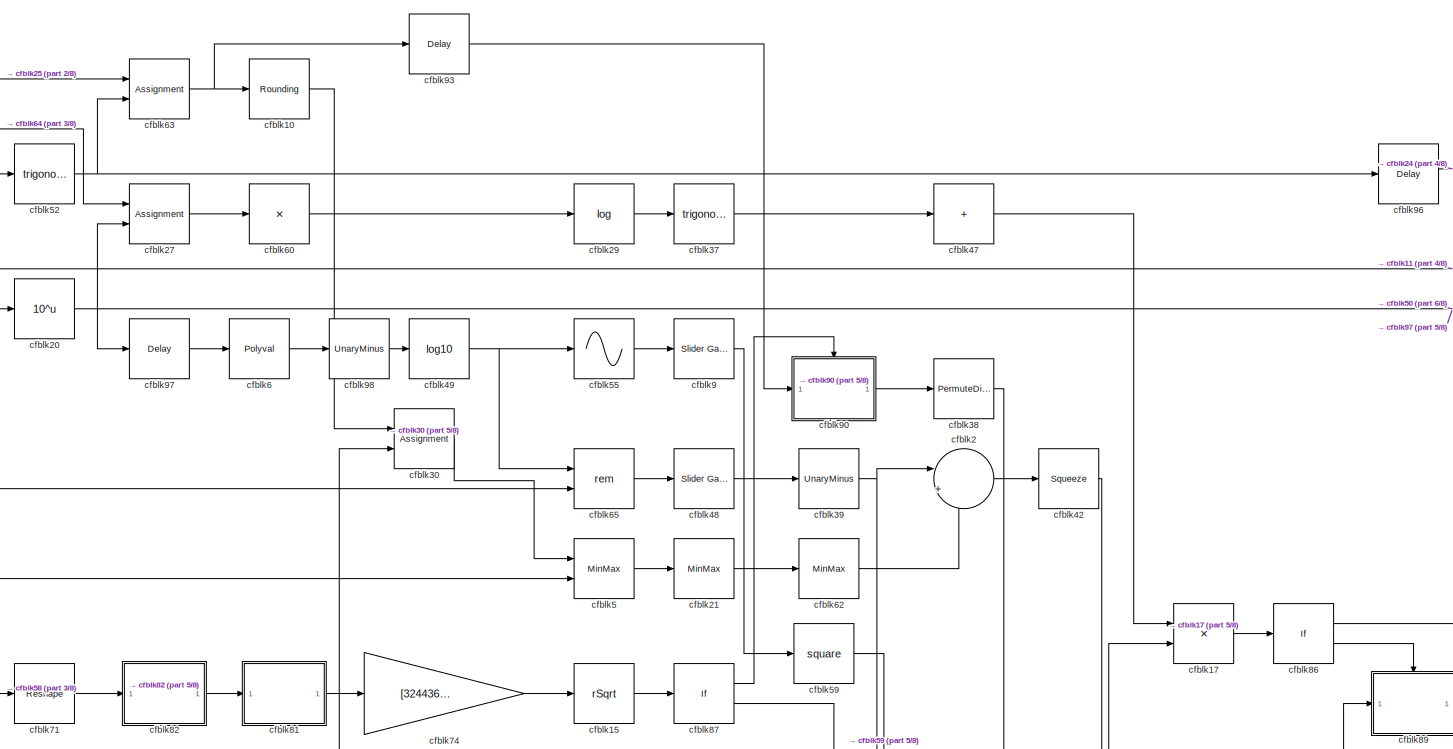
[diagram: root canvas - part 1/8, top center region]
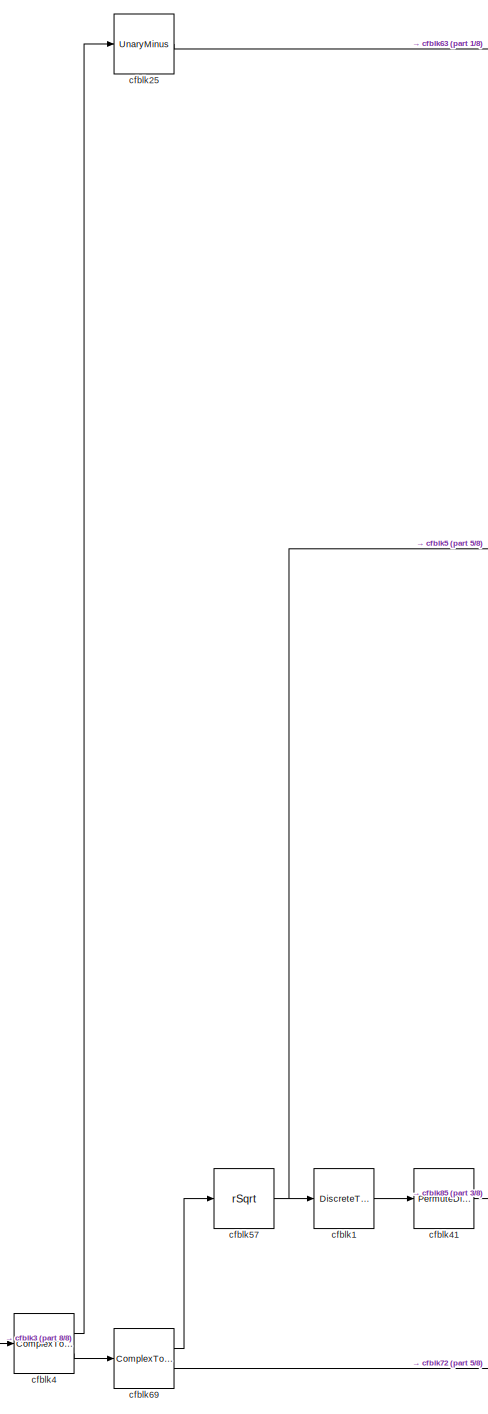
[diagram: root canvas - part 2/8, left side, full height]
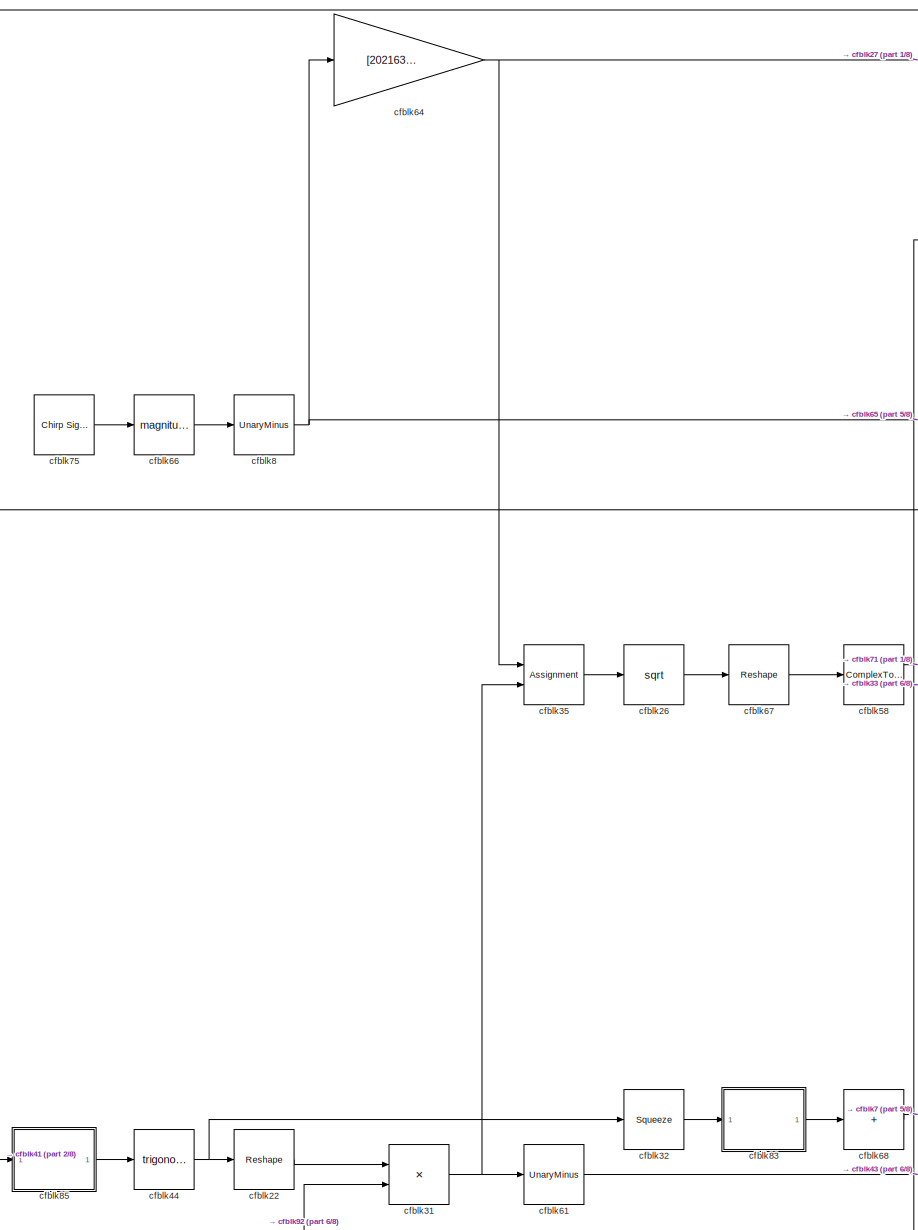
[diagram: root canvas - part 3/8, left side, full height]
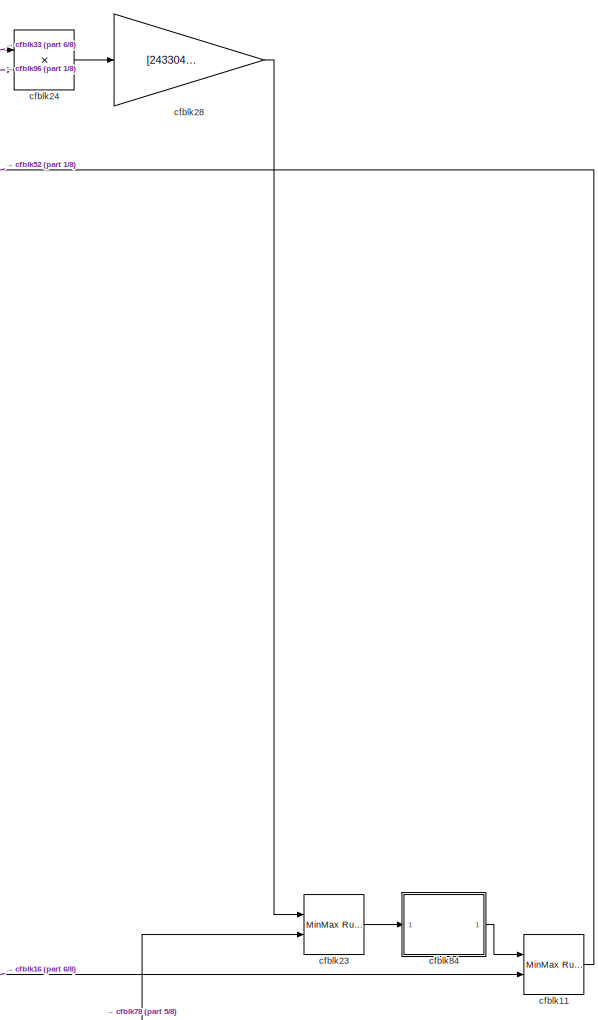
[diagram: root canvas - part 4/8, middle right region]
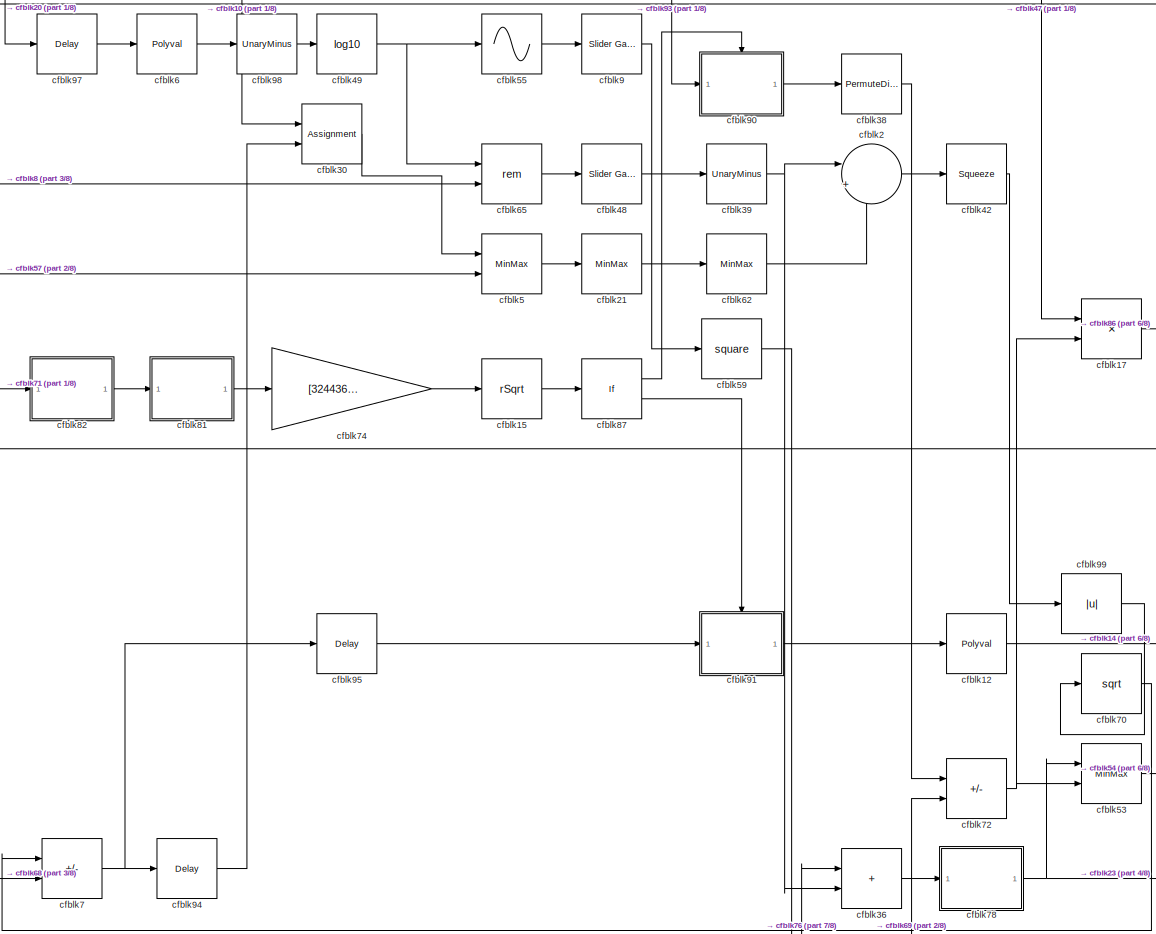
[diagram: root canvas - part 5/8, central region]
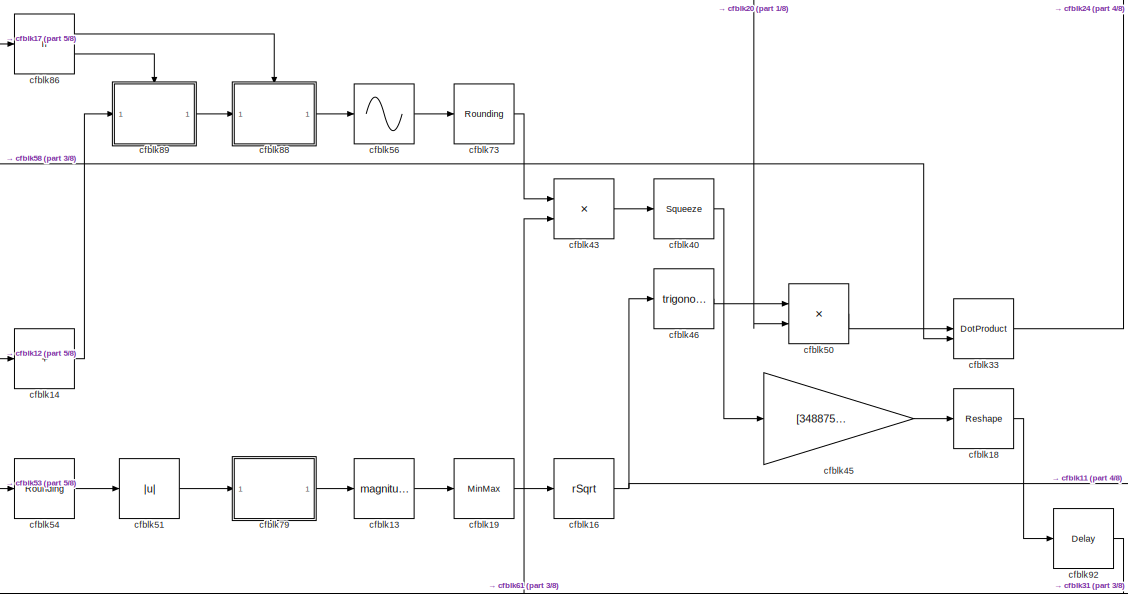
[diagram: root canvas - part 6/8, middle right region]
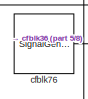
[diagram: root canvas - part 7/8, bottom center region]
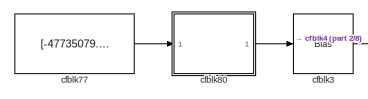
[diagram: root canvas - part 8/8, bottom left region]
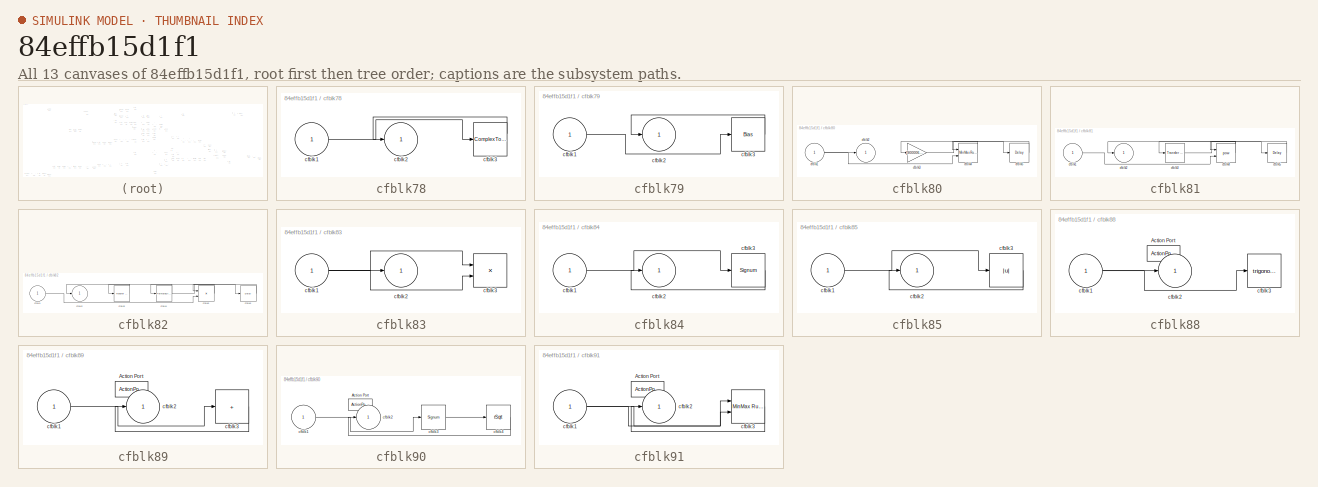
[diagram: thumbnail index - all 13 canvases of the model, root first then tree order]
MODEL slx_84effb15d1f1
KIND model
CONFIG AbsTol = auto
CONFIG EnableMultiTasking = off
CONFIG FixedStep = auto
CONFIG MaxStep = auto
CONFIG MinStep = auto
CONFIG RelTol = 1e-3
CONFIG SampleTimeConstraint = Unconstrained
CONFIG SolverName = VariableStepAuto
CONFIG StartTime = 0.0
CONFIG StopTime = 10.0
BLOCK [DiscreteTransferFcn] cfblk1
  InputPortMap = u0
  Ports = [1, 1]
  SampleTime = 1
BLOCK [Rounding] cfblk10
BLOCK [Reference] cfblk11  REF=simulink/Math
Operations/MinMax
Running
Resettable
  Ports = [2, 1]
  SourceBlock = simulink/Math\nOperations/MinMax\nRunning\nResettable
  SourceProductBaseCode = SL
  SourceType = MinMax Running Resettable
BLOCK [Polyval] cfblk12
  Coefs = [ +2.081618890e-019, -1.441693666e-014, +4.719686976e-010, -8.536869453e-006, +1.621573104e-001, -8.087801117e+001 ]
BLOCK [Math] cfblk13
  Operator = magnitude^2
  Ports = [1, 1]
BLOCK [Sum] cfblk14
  IconShape = rectangular
  Inputs = +
  Ports = [1, 1]
BLOCK [Sqrt] cfblk15
  AlgorithmType = Newton-Raphson
  Operator = rSqrt
BLOCK [Sqrt] cfblk16
  AlgorithmType = Newton-Raphson
  Operator = rSqrt
BLOCK [Product] cfblk17
  Inputs = **
  Ports = [2, 1]
BLOCK [Reshape] cfblk18
  Ports = [1, 1]
BLOCK [MinMax] cfblk19
  Function = max
  Ports = [1, 1]
BLOCK [Sum] cfblk2
  Inputs = |++
  Ports = [2, 1]
BLOCK [Math] cfblk20
  Operator = 10^u
  Ports = [1, 1]
BLOCK [MinMax] cfblk21
  Ports = [1, 1]
BLOCK [Reshape] cfblk22
  Ports = [1, 1]
BLOCK [Reference] cfblk23  REF=simulink/Math
Operations/MinMax
Running
Resettable
  Ports = [2, 1]
  SourceBlock = simulink/Math\nOperations/MinMax\nRunning\nResettable
  SourceProductBaseCode = SL
  SourceType = MinMax Running Resettable
BLOCK [Product] cfblk24
  Inputs = **
  Ports = [2, 1]
BLOCK [UnaryMinus] cfblk25
BLOCK [Sqrt] cfblk26
BLOCK [Assignment] cfblk27
  DiagnosticForDimensions = Warning
  IndexOptions = Index vector (dialog)
  Indices = 1
  OutputSizes = 1
  Ports = [2, 1]
BLOCK [Gain] cfblk28
  Gain = [243304992.433317]
BLOCK [Math] cfblk29
  Operator = log
  Ports = [1, 1]
BLOCK [Bias] cfblk3
  Bias = [-438342693.429770]
  SaturateOnIntegerOverflow = off
BLOCK [Assignment] cfblk30
  DiagnosticForDimensions = Warning
  IndexOptions = Index vector (dialog)
  Indices = 1
  OutputSizes = 1
  Ports = [2, 1]
BLOCK [Product] cfblk31
  Ports = [2, 1]
BLOCK [Squeeze] cfblk32
BLOCK [DotProduct] cfblk33
  OutDataTypeStr = Inherit: Inherit via internal rule
BLOCK [Assignment] cfblk35
  DiagnosticForDimensions = Warning
  IndexOptions = Index vector (dialog)
  Indices = 1
  OutputSizes = 1
  Ports = [2, 1]
BLOCK [Sum] cfblk36
  IconShape = rectangular
  Ports = [2, 1]
BLOCK [Trigonometry] cfblk37
  Ports = [1, 1]
BLOCK [PermuteDimensions] cfblk38
BLOCK [UnaryMinus] cfblk39
BLOCK [ComplexToMagnitudeAngle] cfblk4
  Ports = [1, 2]
BLOCK [Squeeze] cfblk40
BLOCK [PermuteDimensions] cfblk41
BLOCK [Squeeze] cfblk42
BLOCK [Product] cfblk43
  Inputs = **
  Ports = [2, 1]
BLOCK [Trigonometry] cfblk44
  Ports = [1, 1]
BLOCK [Gain] cfblk45
  Gain = [348875315.364563]
BLOCK [Trigonometry] cfblk46
  Ports = [1, 1]
BLOCK [Sum] cfblk47
  IconShape = rectangular
  Inputs = +
  Ports = [1, 1]
BLOCK [Reference] cfblk48  REF=simulink/Math
Operations/Slider
Gain
  Ports = [1, 1]
  SourceBlock = simulink/Math\nOperations/Slider\nGain
  SourceProductBaseCode = SL
  SourceType = Slider Gain
BLOCK [Math] cfblk49
  Operator = log10
  Ports = [1, 1]
BLOCK [MinMax] cfblk5
  Inputs = 2
  Ports = [2, 1]
BLOCK [Product] cfblk50
  Inputs = **
  Ports = [2, 1]
BLOCK [Abs] cfblk51
  SaturateOnIntegerOverflow = off
BLOCK [Trigonometry] cfblk52
  Ports = [1, 1]
BLOCK [MinMax] cfblk53
  Inputs = 2
  Ports = [2, 1]
BLOCK [Rounding] cfblk54
BLOCK [Sin] cfblk55
  Ports = [1, 1]
  SampleTime = 0
  TimeSource = Use external signal
BLOCK [Sin] cfblk56
  Ports = [1, 1]
  SampleTime = 0
  TimeSource = Use external signal
BLOCK [Sqrt] cfblk57
  AlgorithmType = Newton-Raphson
  Operator = rSqrt
BLOCK [ComplexToMagnitudeAngle] cfblk58
  Ports = [1, 2]
BLOCK [Math] cfblk59
  Operator = square
  Ports = [1, 1]
BLOCK [Polyval] cfblk6
  Coefs = [ +2.081618890e-019, -1.441693666e-014, +4.719686976e-010, -8.536869453e-006, +1.621573104e-001, -8.087801117e+001 ]
BLOCK [Product] cfblk60
  Inputs = *
  Ports = [1, 1]
BLOCK [UnaryMinus] cfblk61
BLOCK [MinMax] cfblk62
  Ports = [1, 1]
BLOCK [Assignment] cfblk63
  DiagnosticForDimensions = Warning
  IndexOptions = Index vector (dialog)
  Indices = 1
  OutputSizes = 1
  Ports = [2, 1]
BLOCK [Gain] cfblk64
  Gain = [202163136.326601]
BLOCK [Math] cfblk65
  Operator = rem
  Ports = [2, 1]
BLOCK [Math] cfblk66
  Operator = magnitude^2
  Ports = [1, 1]
BLOCK [Reshape] cfblk67
  Ports = [1, 1]
BLOCK [Sum] cfblk68
  IconShape = rectangular
  Inputs = +
  Ports = [1, 1]
BLOCK [ComplexToRealImag] cfblk69
  Ports = [1, 2]
BLOCK [Sum] cfblk7
  IconShape = rectangular
  Inputs = +-
  Ports = [2, 1]
BLOCK [Sqrt] cfblk70
BLOCK [Reshape] cfblk71
  Ports = [1, 1]
BLOCK [Sum] cfblk72
  IconShape = rectangular
  Inputs = --
  Ports = [2, 1]
BLOCK [Rounding] cfblk73
BLOCK [Gain] cfblk74
  Gain = [324436033.865340]
BLOCK [Reference] cfblk75  REF=simulink/Sources/Chirp Signal
  Ports = [0, 1]
  SourceBlock = simulink/Sources/Chirp Signal
  SourceProductBaseCode = SL
  SourceType = chirp
BLOCK [SignalGenerator] cfblk76
  Amplitude = [511915908.876749]
  Ports = [0, 1]
BLOCK [Constant] cfblk77
  SampleTime = 1
  Value = [-47735079.180120]
BLOCK [SubSystem] cfblk78
  Ports = [1, 1]
  RequestExecContextInheritance = off
BLOCK [Inport] cfblk78/cfblk1
BLOCK [Outport] cfblk78/cfblk2
BLOCK [ComplexToMagnitudeAngle] cfblk78/cfblk3
  Ports = [1, 2]
BLOCK [SubSystem] cfblk79
  Ports = [1, 1]
  RequestExecContextInheritance = off
BLOCK [Inport] cfblk79/cfblk1
BLOCK [Outport] cfblk79/cfblk2
BLOCK [Bias] cfblk79/cfblk3
  Bias = [695222277.040476]
  SaturateOnIntegerOverflow = off
BLOCK [UnaryMinus] cfblk8
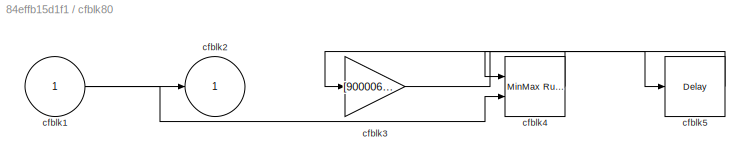
BLOCK [SubSystem] cfblk80
  Ports = [1, 1]
  RequestExecContextInheritance = off
BLOCK [Inport] cfblk80/cfblk1
BLOCK [Outport] cfblk80/cfblk2
BLOCK [Gain] cfblk80/cfblk3
  Gain = [90000623.035267]
BLOCK [Reference] cfblk80/cfblk4  REF=simulink/Math
Operations/MinMax
Running
Resettable
  Ports = [2, 1]
  SourceBlock = simulink/Math\nOperations/MinMax\nRunning\nResettable
  SourceProductBaseCode = SL
  SourceType = MinMax Running Resettable
BLOCK [Delay] cfblk80/cfblk5
  InputPortMap = u0
  Ports = [1, 1]
  SampleTime = 1
BLOCK [SubSystem] cfblk81
  Ports = [1, 1]
  RequestExecContextInheritance = off
BLOCK [Inport] cfblk81/cfblk1
BLOCK [Outport] cfblk81/cfblk2
BLOCK [Reference] cfblk81/cfblk3  REF=simulink/Discrete/Transfer Fcn
Real Zero
  Ports = [1, 1]
  SourceBlock = simulink/Discrete/Transfer Fcn\nReal Zero
  SourceProductBaseCode = SL
  SourceType = Transfer Fcn Real Zero
BLOCK [Math] cfblk81/cfblk4
  Operator = pow
  Ports = [2, 1]
BLOCK [Delay] cfblk81/cfblk5
  InputPortMap = u0
  Ports = [1, 1]
  SampleTime = 1
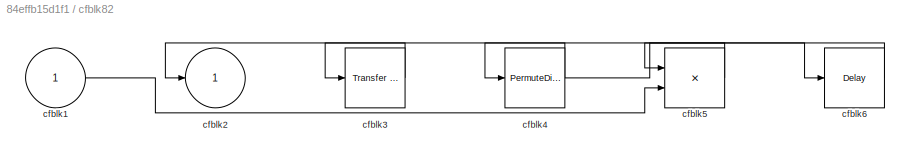
BLOCK [SubSystem] cfblk82
  Ports = [1, 1]
  RequestExecContextInheritance = off
BLOCK [Inport] cfblk82/cfblk1
BLOCK [Outport] cfblk82/cfblk2
BLOCK [Reference] cfblk82/cfblk3  REF=simulink/Discrete/Transfer Fcn
Real Zero
  Ports = [1, 1]
  SourceBlock = simulink/Discrete/Transfer Fcn\nReal Zero
  SourceProductBaseCode = SL
  SourceType = Transfer Fcn Real Zero
BLOCK [PermuteDimensions] cfblk82/cfblk4
BLOCK [Product] cfblk82/cfblk5
  Ports = [2, 1]
BLOCK [Delay] cfblk82/cfblk6
  InputPortMap = u0
  Ports = [1, 1]
  SampleTime = 1
BLOCK [SubSystem] cfblk83
  Ports = [1, 1]
  RequestExecContextInheritance = off
BLOCK [Inport] cfblk83/cfblk1
BLOCK [Outport] cfblk83/cfblk2
BLOCK [Product] cfblk83/cfblk3
  Inputs = **
  Ports = [2, 1]
BLOCK [SubSystem] cfblk84
  Ports = [1, 1]
  RequestExecContextInheritance = off
BLOCK [Inport] cfblk84/cfblk1
BLOCK [Outport] cfblk84/cfblk2
BLOCK [Signum] cfblk84/cfblk3
BLOCK [SubSystem] cfblk85
  Ports = [1, 1]
  RequestExecContextInheritance = off
BLOCK [Inport] cfblk85/cfblk1
BLOCK [Outport] cfblk85/cfblk2
BLOCK [Abs] cfblk85/cfblk3
  SaturateOnIntegerOverflow = off
BLOCK [If] cfblk86
  IfExpression = u1 >= 0
  Ports = [1, 2]
  SampleTime = 1
BLOCK [If] cfblk87
  IfExpression = u1 >= 0
  Ports = [1, 2]
  SampleTime = 1
BLOCK [SubSystem] cfblk88
  Ports = [1, 1, 0, 0, 0, 0, 0, 1]
  RequestExecContextInheritance = off
  TreatAsAtomicUnit = on
BLOCK [ActionPort] cfblk88/Action Port
  ActionPortLabel = if(u1 >= 0)
BLOCK [Inport] cfblk88/cfblk1
BLOCK [Outport] cfblk88/cfblk2
BLOCK [Trigonometry] cfblk88/cfblk3
  Ports = [1, 1]
BLOCK [SubSystem] cfblk89
  Ports = [1, 1, 0, 0, 0, 0, 0, 1]
  RequestExecContextInheritance = off
  TreatAsAtomicUnit = on
BLOCK [ActionPort] cfblk89/Action Port
  ActionPortLabel = else
BLOCK [Inport] cfblk89/cfblk1
BLOCK [Outport] cfblk89/cfblk2
BLOCK [Sum] cfblk89/cfblk3
  IconShape = rectangular
  Inputs = +
  Ports = [1, 1]
BLOCK [Reference] cfblk9  REF=simulink/Math
Operations/Slider
Gain
  Ports = [1, 1]
  SourceBlock = simulink/Math\nOperations/Slider\nGain
  SourceProductBaseCode = SL
  SourceType = Slider Gain
BLOCK [SubSystem] cfblk90
  Ports = [1, 1, 0, 0, 0, 0, 0, 1]
  RequestExecContextInheritance = off
  TreatAsAtomicUnit = on
BLOCK [ActionPort] cfblk90/Action Port
  ActionPortLabel = if(u1 >= 0)
BLOCK [Inport] cfblk90/cfblk1
BLOCK [Outport] cfblk90/cfblk2
BLOCK [Signum] cfblk90/cfblk3
BLOCK [Sqrt] cfblk90/cfblk4
  AlgorithmType = Newton-Raphson
  Operator = rSqrt
BLOCK [SubSystem] cfblk91
  Ports = [1, 1, 0, 0, 0, 0, 0, 1]
  RequestExecContextInheritance = off
  TreatAsAtomicUnit = on
BLOCK [ActionPort] cfblk91/Action Port
  ActionPortLabel = else
BLOCK [Inport] cfblk91/cfblk1
BLOCK [Outport] cfblk91/cfblk2
BLOCK [Reference] cfblk91/cfblk3  REF=simulink/Math
Operations/MinMax
Running
Resettable
  Ports = [2, 1]
  SourceBlock = simulink/Math\nOperations/MinMax\nRunning\nResettable
  SourceProductBaseCode = SL
  SourceType = MinMax Running Resettable
BLOCK [Delay] cfblk92
  InputPortMap = u0
  Ports = [1, 1]
  SampleTime = 1
BLOCK [Delay] cfblk93
  InputPortMap = u0
  Ports = [1, 1]
  SampleTime = 1
BLOCK [Delay] cfblk94
  InputPortMap = u0
  Ports = [1, 1]
  SampleTime = 1
BLOCK [Delay] cfblk95
  InputPortMap = u0
  Ports = [1, 1]
  SampleTime = 1
BLOCK [Delay] cfblk96
  InputPortMap = u0
  Ports = [1, 1]
  SampleTime = 1
BLOCK [Delay] cfblk97
  InputPortMap = u0
  Ports = [1, 1]
  SampleTime = 1
BLOCK [UnaryMinus] cfblk98
BLOCK [Abs] cfblk99
  SaturateOnIntegerOverflow = off
LINE cfblk10:1 -> cfblk30:1
LINE cfblk11:1 -> cfblk52:1
LINE cfblk12:1 -> cfblk14:1
LINE cfblk13:1 -> cfblk19:1
LINE cfblk14:1 -> cfblk89:1
LINE cfblk15:1 -> cfblk87:1
NET cfblk16:1 -> cfblk11:2, cfblk46:1
LINE cfblk17:1 -> cfblk86:1
LINE cfblk18:1 -> cfblk92:1
LINE cfblk19:1 -> cfblk16:1
LINE cfblk1:1 -> cfblk41:1
NET cfblk20:1 -> cfblk27:2, cfblk50:2, cfblk97:1
LINE cfblk21:1 -> cfblk62:1
LINE cfblk22:1 -> cfblk31:1
LINE cfblk23:1 -> cfblk84:1
LINE cfblk24:1 -> cfblk28:1
LINE cfblk25:1 -> cfblk63:1
LINE cfblk26:1 -> cfblk67:1
LINE cfblk27:1 -> cfblk60:1
LINE cfblk28:1 -> cfblk23:1
LINE cfblk29:1 -> cfblk37:1
LINE cfblk2:1 -> cfblk42:1
LINE cfblk30:1 -> cfblk5:1
NET cfblk31:1 -> cfblk35:2, cfblk61:1
LINE cfblk32:1 -> cfblk83:1
LINE cfblk33:1 -> cfblk24:1
LINE cfblk35:1 -> cfblk26:1
LINE cfblk36:1 -> cfblk78:1
LINE cfblk37:1 -> cfblk47:1
LINE cfblk38:1 -> cfblk72:1
NET cfblk39:1 -> cfblk2:1, cfblk36:2
LINE cfblk3:1 -> cfblk4:1
LINE cfblk40:1 -> cfblk45:1
LINE cfblk41:1 -> cfblk85:1
LINE cfblk42:1 -> cfblk99:1
LINE cfblk43:1 -> cfblk40:1
NET cfblk44:1 -> cfblk22:1, cfblk32:1
LINE cfblk45:1 -> cfblk18:1
LINE cfblk46:1 -> cfblk50:1
LINE cfblk47:1 -> cfblk17:1
LINE cfblk48:1 -> cfblk39:1
NET cfblk49:1 -> cfblk55:1, cfblk65:1
LINE cfblk4:1 -> cfblk25:1
LINE cfblk4:2 -> cfblk69:1
LINE cfblk50:1 -> cfblk33:1
LINE cfblk51:1 -> cfblk79:1
NET cfblk52:1 -> cfblk63:2, cfblk96:1
LINE cfblk53:1 -> cfblk54:1
LINE cfblk54:1 -> cfblk51:1
LINE cfblk55:1 -> cfblk9:1
LINE cfblk56:1 -> cfblk73:1
NET cfblk57:1 -> cfblk1:1, cfblk5:2
LINE cfblk58:1 -> cfblk71:1
LINE cfblk58:2 -> cfblk33:2
LINE cfblk59:1 -> cfblk20:1
LINE cfblk5:1 -> cfblk21:1
LINE cfblk60:1 -> cfblk29:1
LINE cfblk61:1 -> cfblk43:2
LINE cfblk62:1 -> cfblk2:2
NET cfblk63:1 -> cfblk10:1, cfblk93:1
NET cfblk64:1 -> cfblk27:1, cfblk35:1
LINE cfblk65:1 -> cfblk48:1
LINE cfblk66:1 -> cfblk8:1
LINE cfblk67:1 -> cfblk58:1
LINE cfblk68:1 -> cfblk7:2
LINE cfblk69:1 -> cfblk57:1
LINE cfblk69:2 -> cfblk72:2
LINE cfblk6:1 -> cfblk98:1
LINE cfblk70:1 -> cfblk7:1
LINE cfblk71:1 -> cfblk82:1
NET cfblk72:1 -> cfblk17:2, cfblk53:2
LINE cfblk73:1 -> cfblk43:1
LINE cfblk74:1 -> cfblk15:1
LINE cfblk75:1 -> cfblk66:1
LINE cfblk76:1 -> cfblk36:1
LINE cfblk77:1 -> cfblk80:1
LINE cfblk78/cfblk1:1 -> cfblk78/cfblk3:1
LINE cfblk78/cfblk3:1 -> cfblk78/cfblk2:1
NET cfblk78:1 -> cfblk23:2, cfblk53:1
LINE cfblk79/cfblk1:1 -> cfblk79/cfblk3:1
LINE cfblk79/cfblk3:1 -> cfblk79/cfblk2:1
LINE cfblk79:1 -> cfblk13:1
NET cfblk7:1 -> cfblk94:1, cfblk95:1
NET cfblk80/cfblk1:1 -> cfblk80/cfblk2:1, cfblk80/cfblk4:2
LINE cfblk80/cfblk3:1 -> cfblk80/cfblk5:1
LINE cfblk80/cfblk4:1 -> cfblk80/cfblk3:1
LINE cfblk80/cfblk5:1 -> cfblk80/cfblk4:1
LINE cfblk80:1 -> cfblk3:1
LINE cfblk81/cfblk1:1 -> cfblk81/cfblk4:2
LINE cfblk81/cfblk3:1 -> cfblk81/cfblk5:1
NET cfblk81/cfblk4:1 -> cfblk81/cfblk2:1, cfblk81/cfblk3:1
LINE cfblk81/cfblk5:1 -> cfblk81/cfblk4:1
LINE cfblk81:1 -> cfblk74:1
LINE cfblk82/cfblk1:1 -> cfblk82/cfblk5:2
LINE cfblk82/cfblk3:1 -> cfblk82/cfblk2:1
NET cfblk82/cfblk4:1 -> cfblk82/cfblk3:1, cfblk82/cfblk6:1
LINE cfblk82/cfblk5:1 -> cfblk82/cfblk4:1
LINE cfblk82/cfblk6:1 -> cfblk82/cfblk5:1
LINE cfblk82:1 -> cfblk81:1
NET cfblk83/cfblk1:1 -> cfblk83/cfblk2:1, cfblk83/cfblk3:1, cfblk83/cfblk3:2
LINE cfblk83:1 -> cfblk68:1
LINE cfblk84/cfblk1:1 -> cfblk84/cfblk3:1
LINE cfblk84/cfblk3:1 -> cfblk84/cfblk2:1
LINE cfblk84:1 -> cfblk11:1
LINE cfblk85/cfblk1:1 -> cfblk85/cfblk3:1
LINE cfblk85/cfblk3:1 -> cfblk85/cfblk2:1
LINE cfblk85:1 -> cfblk44:1
LINE cfblk86:1 -> cfblk88:ifaction
LINE cfblk86:2 -> cfblk89:ifaction
LINE cfblk87:1 -> cfblk90:ifaction
LINE cfblk87:2 -> cfblk91:ifaction
NET cfblk88/cfblk1:1 -> cfblk88/cfblk2:1, cfblk88/cfblk3:1
LINE cfblk88:1 -> cfblk56:1
LINE cfblk89/cfblk1:1 -> cfblk89/cfblk3:1
LINE cfblk89/cfblk3:1 -> cfblk89/cfblk2:1
LINE cfblk89:1 -> cfblk88:1
NET cfblk8:1 -> cfblk64:1, cfblk65:2
LINE cfblk90/cfblk1:1 -> cfblk90/cfblk3:1
LINE cfblk90/cfblk3:1 -> cfblk90/cfblk4:1
LINE cfblk90/cfblk4:1 -> cfblk90/cfblk2:1
LINE cfblk90:1 -> cfblk38:1
NET cfblk91/cfblk1:1 -> cfblk91/cfblk3:1, cfblk91/cfblk3:2
LINE cfblk91/cfblk3:1 -> cfblk91/cfblk2:1
LINE cfblk91:1 -> cfblk12:1
LINE cfblk92:1 -> cfblk31:2
LINE cfblk93:1 -> cfblk90:1
LINE cfblk94:1 -> cfblk30:2
LINE cfblk95:1 -> cfblk91:1
LINE cfblk96:1 -> cfblk24:2
LINE cfblk97:1 -> cfblk6:1
LINE cfblk98:1 -> cfblk49:1
LINE cfblk99:1 -> cfblk70:1
LINE cfblk9:1 -> cfblk59:1
note: NET lines group one-source signal fan-out (src -> all destinations, sorted); 1:1 wires keep LINE
